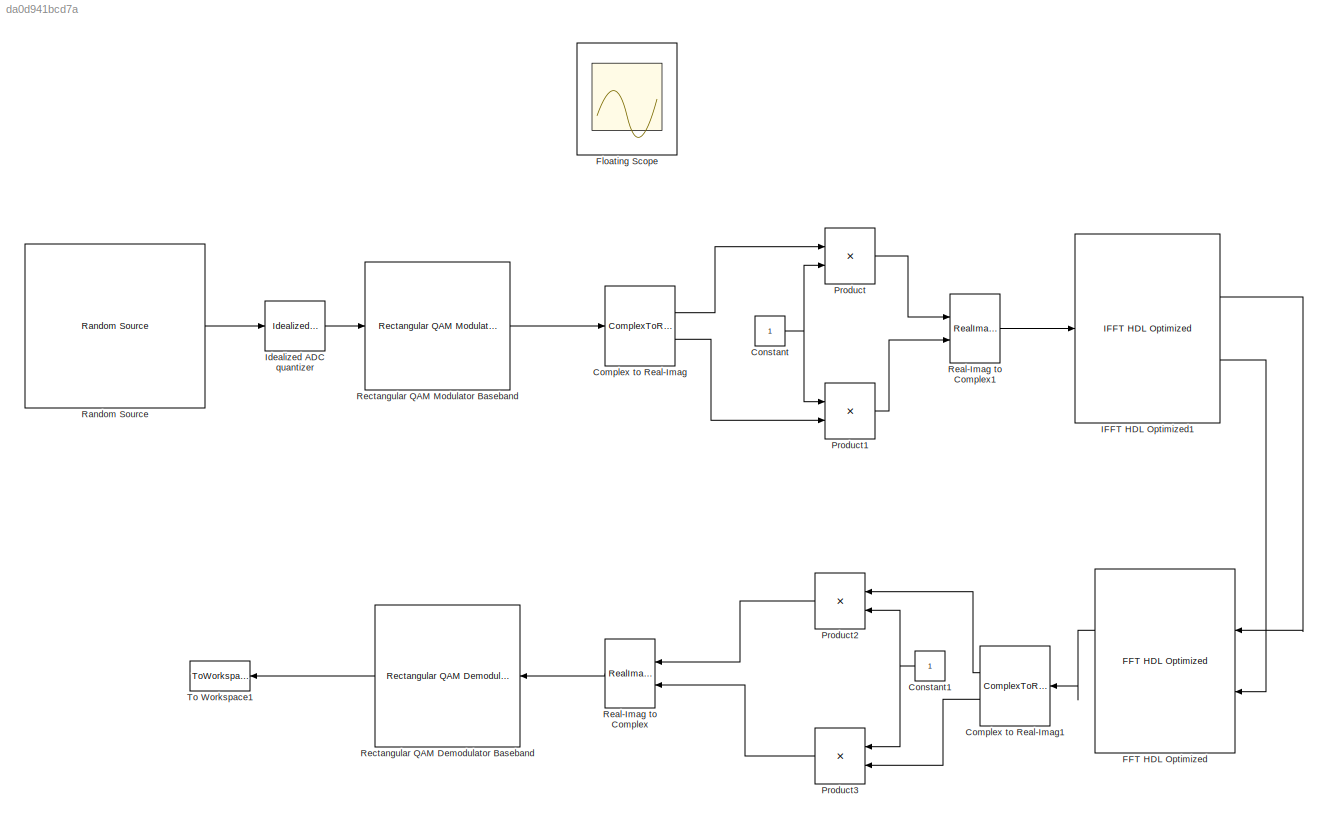
MODEL slx_da0d941bcd7a
KIND model
CONFIG AbsTol = auto
CONFIG FixedStep = auto
CONFIG MaxStep = auto
CONFIG MinStep = auto
CONFIG RelTol = 1e-3
CONFIG SampleTimeConstraint = Unconstrained
CONFIG Solver = VariableStepDiscrete
CONFIG SolverMode = SingleTasking
CONFIG SolverName = VariableStepDiscrete
CONFIG StartTime = 0.0
CONFIG StopTime = inf
BLOCK [ComplexToRealImag] Complex to Real-Imag
  Ports = [1, 2]
BLOCK [ComplexToRealImag] Complex to Real-Imag1
  Ports = [1, 2]
BLOCK [Constant] Constant
  SampleTime = -1
BLOCK [Constant] Constant1
  SampleTime = -1
BLOCK [Reference] FFT HDL Optimized  REF=dspxfrm3/FFT
HDL Optimized
  Ports = [2, 2]
  SourceBlock = dspxfrm3/FFT\nHDL Optimized
  SourceType = FFT HDL Optimized
BLOCK [Scope] Floating Scope
  Floating = on
  Ports = []
  ScopeSpecificationString = Simulink.scopes.TimeScopeBlockCfg('CurrentConfiguration', extmgr.ConfigurationSet(extmgr.Configuration('Core','General UI',true),extmgr.Configuration('Core','Source UI',true),extmgr.Configuration('Sources','WiredSimulink',true,'DataLoggingLimitDataPoints',true,'DataLoggingSaveFormat','StructureWithTime','DataLoggingDecimation','1','DataLoggingDecimateData',true),extmgr.Configuration('Visuals','Tim...<+5459ch>
BLOCK [Reference] IFFT HDL Optimized1  REF=dspxfrm3/IFFT
HDL Optimized
  Ports = [1, 2]
  SourceBlock = dspxfrm3/IFFT\nHDL Optimized
  SourceType = IFFT HDL Optimized
BLOCK [Reference] Idealized ADC quantizer  REF=simulink_extras/Additional
Discrete/Idealized ADC quantizer
  AttributesFormatString = (settings: %<NumberOfConverterBits>-bit converter\nVmin: %<Vmin>, Vmax: %<Vmax>)
  Ports = [1, 1]
  SourceBlock = simulink_extras/Additional\nDiscrete/Idealized ADC quantizer
  SourceType = IdealADC
BLOCK [Product] Product
  OutDataTypeStr = Inherit: Inherit via internal rule
  Ports = [2, 1]
  RndMeth = Floor
  SaturateOnIntegerOverflow = off
BLOCK [Product] Product1
  OutDataTypeStr = Inherit: Inherit via internal rule
  Ports = [2, 1]
  RndMeth = Floor
  SaturateOnIntegerOverflow = off
BLOCK [Product] Product2
  InputSameDT = off
  OutDataTypeStr = Inherit: Inherit via back propagation
  Ports = [2, 1]
  RndMeth = Floor
  SaturateOnIntegerOverflow = off
BLOCK [Product] Product3
  InputSameDT = off
  OutDataTypeStr = Inherit: Inherit via back propagation
  Ports = [2, 1]
  RndMeth = Floor
  SaturateOnIntegerOverflow = off
BLOCK [Reference] Random Source  REF=dspsrcs4/Random
Source
  Ports = [0, 1]
  SourceBlock = dspsrcs4/Random\nSource
  SourceType = Random Source
  UserDataPersistent = on
BLOCK [RealImagToComplex] Real-Imag to Complex
  Ports = [2, 1]
BLOCK [RealImagToComplex] Real-Imag to Complex1
  Ports = [2, 1]
BLOCK [Reference] Rectangular QAM Demodulator Baseband  REF=commdigbbndam3/Rectangular QAM
Demodulator
Baseband
  Ports = [1, 1]
  SourceBlock = commdigbbndam3/Rectangular QAM\nDemodulator\nBaseband
  SourceType = Rectangular QAM Demodulator Baseband
BLOCK [Reference] Rectangular QAM Modulator Baseband  REF=commdigbbndam3/Rectangular QAM
Modulator
Baseband
  Ports = [1, 1]
  SourceBlock = commdigbbndam3/Rectangular QAM\nModulator\nBaseband
  SourceType = Rectangular QAM Modulator Baseband
BLOCK [ToWorkspace] To Workspace1
  FixptAsFi = on
  MaxDataPoints = inf
  Ports = [1]
  SampleTime = -1
  Save2DSignal = 3-D array (concatenate along third dimension)
  SaveFormat = Timeseries
  VariableName = simout1
LINE Complex to Real-Imag1:1 -> Product2:1
LINE Complex to Real-Imag1:2 -> Product3:2
LINE Complex to Real-Imag:1 -> Product:1
LINE Complex to Real-Imag:2 -> Product1:2
NET Constant1:1 -> Product2:2, Product3:1
NET Constant:1 -> Product1:1, Product:2
LINE FFT HDL Optimized:1 -> Complex to Real-Imag1:1
LINE IFFT HDL Optimized1:1 -> FFT HDL Optimized:1
LINE IFFT HDL Optimized1:2 -> FFT HDL Optimized:2
LINE Idealized ADC quantizer:1 -> Rectangular QAM Modulator Baseband:1
LINE Product1:1 -> Real-Imag to Complex1:2
LINE Product2:1 -> Real-Imag to Complex:1
LINE Product3:1 -> Real-Imag to Complex:2
LINE Product:1 -> Real-Imag to Complex1:1
LINE Random Source:1 -> Idealized ADC quantizer:1
LINE Real-Imag to Complex1:1 -> IFFT HDL Optimized1:1
LINE Real-Imag to Complex:1 -> Rectangular QAM Demodulator Baseband:1
LINE Rectangular QAM Demodulator Baseband:1 -> To Workspace1:1
LINE Rectangular QAM Modulator Baseband:1 -> Complex to Real-Imag:1
note: NET lines group one-source signal fan-out (src -> all destinations, sorted); 1:1 wires keep LINE
